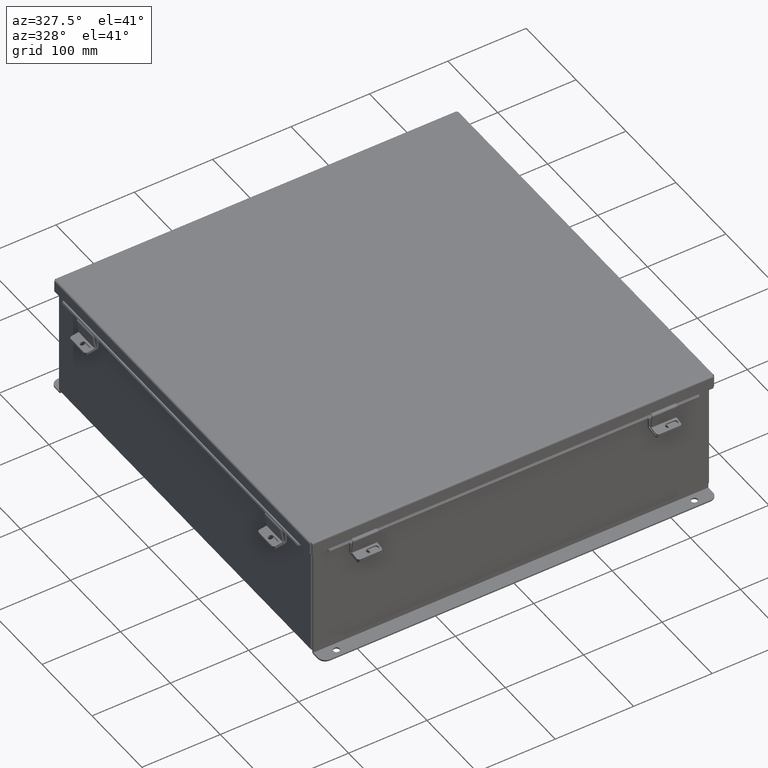
[diagram: clean part render]
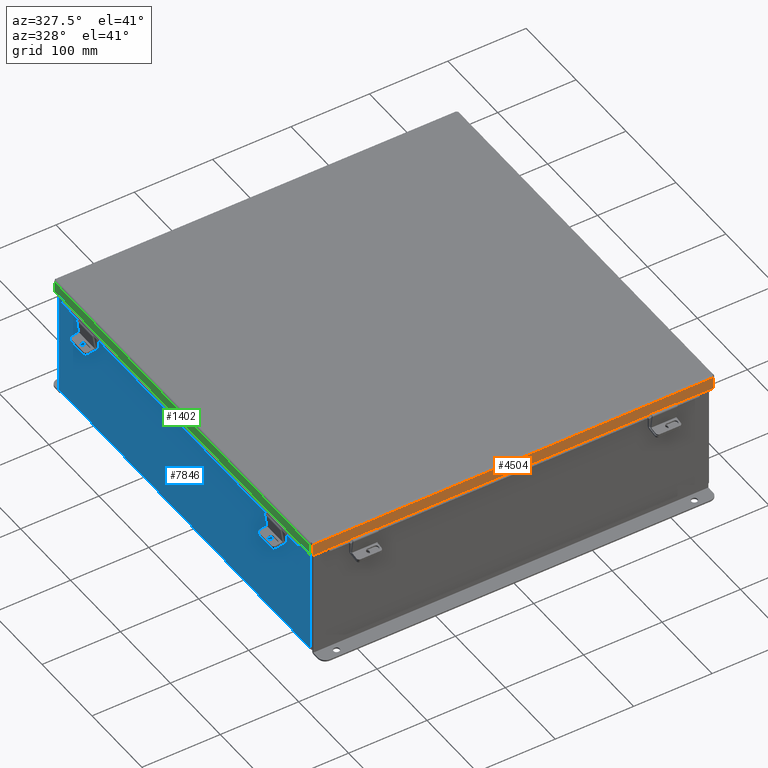
[diagram: same view with three faces highlighted in distinct colors, each labeled with its STEP entity id]
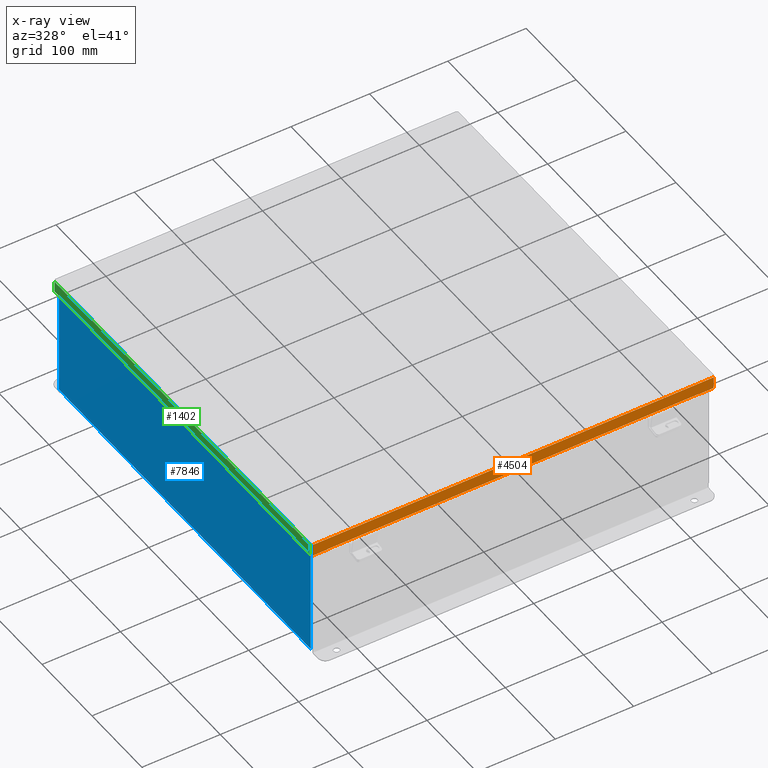
[diagram: x-ray of the same camera — body ghosted, the three highlighted faces saturated]
A machine part, auxiliary view with three faces highlighted in distinct colors.
The next image is the same camera in x-ray (body ghosted, the three faces saturated) — at least one of them is partly hidden behind the body in this view.
Their STEP definitions:

[orange] entity #4504 — the highlighted planar face has unit normal (0, 1, 0).
#35 = CARTESIAN_POINT ( 'NONE',  ( -1.092739197465705100E-015, -10.15624999999999600, -2.608136560115820500E-016 ) ) ;
#69 = VECTOR ( 'NONE', #6553, 39.37007874015748100 ) ;
#226 = CARTESIAN_POINT ( 'NONE',  ( -9.324478932188130300, -10.15624999999999600, 0.5967115427318792100 ) ) ;
#257 = CARTESIAN_POINT ( 'NONE',  ( -9.324478932188130300, -10.15624999999999600, 0.6122999999999997300 ) ) ;
#347 = EDGE_CURVE ( 'NONE', #3355, #8880, #5350, .T. ) ;
#515 = CARTESIAN_POINT ( 'NONE',  ( 9.324478932188133800, -10.15624999999999600, 0.6122999999999997300 ) ) ;
#595 = CARTESIAN_POINT ( 'NONE',  ( -1.090680476817679800E-015, -10.15624999999999600, 0.6122999999999997300 ) ) ;
#814 = DIRECTION ( 'NONE',  ( 1.075927825197002200E-016, 1.000000000000000000, -0.0000000000000000000 ) ) ;
#894 = EDGE_CURVE ( 'NONE', #2578, #6916, #5200, .T. ) ;
#1002 = VECTOR ( 'NONE', #9154, 39.37007874015748100 ) ;
#1134 = VECTOR ( 'NONE', #8388, 39.37007874015748100 ) ;
#1226 = VERTEX_POINT ( 'NONE', #9748 ) ;
#1320 = FACE_OUTER_BOUND ( 'NONE', #4576, .T. ) ;
#1419 = CARTESIAN_POINT ( 'NONE',  ( -10.07447893218813200, -10.15624999999999600, 3.125669222287427700E-032 ) ) ;
#1513 = ORIENTED_EDGE ( 'NONE', *, *, #3130, .T. ) ;
#1779 = ORIENTED_EDGE ( 'NONE', *, *, #347, .F. ) ;
#1998 = CARTESIAN_POINT ( 'NONE',  ( 10.07447893218813400, -10.15624999999999600, -2.608136560115820500E-016 ) ) ;
#2578 = VERTEX_POINT ( 'NONE', #9290 ) ;
#2753 = EDGE_CURVE ( 'NONE', #8880, #3658, #5870, .T. ) ;
#2994 = EDGE_CURVE ( 'NONE', #1226, #3658, #6701, .T. ) ;
#3130 = EDGE_CURVE ( 'NONE', #6317, #6916, #3266, .T. ) ;
#3266 = LINE ( 'NONE', #5306, #1002 ) ;
#3283 = CARTESIAN_POINT ( 'NONE',  ( 10.07447893218813400, -10.15624999999999600, 0.01300000000000228900 ) ) ;
#3355 = VERTEX_POINT ( 'NONE', #226 ) ;
#3495 = ORIENTED_EDGE ( 'NONE', *, *, #5547, .F. ) ;
#3650 = DIRECTION ( 'NONE',  ( -1.000000000000000000, 1.075927825197002400E-016, 3.362274453740632500E-018 ) ) ;
#3658 = VERTEX_POINT ( 'NONE', #515 ) ;
#4504 = ADVANCED_FACE ( 'NONE', ( #1320 ), #5355, .F. ) ;
#4576 = EDGE_LOOP ( 'NONE', ( #3495, #1513, #7041, #4590, #6320, #5085, #6907, #1779 ) ) ;
#4590 = ORIENTED_EDGE ( 'NONE', *, *, #7837, .F. ) ;
#4901 = EDGE_CURVE ( 'NONE', #5312, #1226, #5884, .T. ) ;
#5085 = ORIENTED_EDGE ( 'NONE', *, *, #2994, .T. ) ;
#5200 = LINE ( 'NONE', #1419, #6986 ) ;
#5306 = CARTESIAN_POINT ( 'NONE',  ( -1.090680476817679800E-015, -10.15624999999999600, 0.6122999999999997300 ) ) ;
#5312 = VERTEX_POINT ( 'NONE', #3283 ) ;
#5350 = LINE ( 'NONE', #8799, #6890 ) ;
#5355 = PLANE ( 'NONE',  #9683 ) ;
#5547 = EDGE_CURVE ( 'NONE', #6317, #3355, #7409, .T. ) ;
#5747 = DIRECTION ( 'NONE',  ( 1.000000000000000000, 0.0000000000000000000, 0.0000000000000000000 ) ) ;
#5870 = LINE ( 'NONE', #6442, #7666 ) ;
#5884 = LINE ( 'NONE', #1998, #69 ) ;
#6030 = DIRECTION ( 'NONE',  ( 7.009925220120809400E-014, 1.401985044024161900E-013, -1.000000000000000000 ) ) ;
#6121 = DIRECTION ( 'NONE',  ( -1.000000000000000000, 1.075927825197002200E-016, 0.0000000000000000000 ) ) ;
#6227 = VECTOR ( 'NONE', #3650, 39.37007874015748100 ) ;
#6317 = VERTEX_POINT ( 'NONE', #257 ) ;
#6320 = ORIENTED_EDGE ( 'NONE', *, *, #4901, .T. ) ;
#6442 = CARTESIAN_POINT ( 'NONE',  ( 9.324478932188133800, -10.15624999999999500, 0.5967115427318792100 ) ) ;
#6553 = DIRECTION ( 'NONE',  ( 0.0000000000000000000, 0.0000000000000000000, 1.000000000000000000 ) ) ;
#6701 = LINE ( 'NONE', #595, #6227 ) ;
#6890 = VECTOR ( 'NONE', #5747, 39.37007874015748100 ) ;
#6907 = ORIENTED_EDGE ( 'NONE', *, *, #2753, .F. ) ;
#6916 = VERTEX_POINT ( 'NONE', #7081 ) ;
#6986 = VECTOR ( 'NONE', #8258, 39.37007874015748100 ) ;
#7041 = ORIENTED_EDGE ( 'NONE', *, *, #894, .F. ) ;
#7081 = CARTESIAN_POINT ( 'NONE',  ( -10.07447893218813200, -10.15624999999999600, 0.6122999999999997300 ) ) ;
#7203 = DIRECTION ( 'NONE',  ( 0.0000000000000000000, -1.401985044024106600E-013, 1.000000000000000000 ) ) ;
#7409 = LINE ( 'NONE', #7562, #9225 ) ;
#7562 = CARTESIAN_POINT ( 'NONE',  ( -9.324478932188130300, -10.15624999999999600, 0.6122999999999992900 ) ) ;
#7600 = CARTESIAN_POINT ( 'NONE',  ( -10.15624999999999600, -10.15624999999999500, 0.01300000000000011200 ) ) ;
#7666 = VECTOR ( 'NONE', #7203, 39.37007874015748100 ) ;
#7837 = EDGE_CURVE ( 'NONE', #5312, #2578, #9470, .T. ) ;
#8053 = CARTESIAN_POINT ( 'NONE',  ( 9.324478932188133800, -10.15624999999999600, 0.5967115427318792100 ) ) ;
#8258 = DIRECTION ( 'NONE',  ( -0.0000000000000000000, -0.0000000000000000000, 1.000000000000000000 ) ) ;
#8388 = DIRECTION ( 'NONE',  ( -1.000000000000000000, 1.075927825197002400E-016, -1.075927825197002500E-016 ) ) ;
#8799 = CARTESIAN_POINT ( 'NONE',  ( -9.324478932188130300, -10.15624999999999500, 0.5967115427318792100 ) ) ;
#8880 = VERTEX_POINT ( 'NONE', #8053 ) ;
#9154 = DIRECTION ( 'NONE',  ( -1.000000000000000000, 1.075927825197002400E-016, 3.362274453740632500E-018 ) ) ;
#9225 = VECTOR ( 'NONE', #6030, 39.37007874015748100 ) ;
#9290 = CARTESIAN_POINT ( 'NONE',  ( -10.07447893218813400, -10.15624999999999600, 0.01300000000000037200 ) ) ;
#9470 = LINE ( 'NONE', #7600, #1134 ) ;
#9683 = AXIS2_PLACEMENT_3D ( 'NONE', #35, #814, #6121 ) ;
#9748 = CARTESIAN_POINT ( 'NONE',  ( 10.07447893218813400, -10.15624999999999600, 0.6122999999999997300 ) ) ;

[blue] entity #7846 — the highlighted planar face has unit normal (1, 0, 0).
#21 = DIRECTION ( 'NONE',  ( 3.361929640444175900E-015, 0.0000000000000000000, -1.000000000000000000 ) ) ;
#99 = AXIS2_PLACEMENT_3D ( 'NONE', #7569, #4578, #21 ) ;
#120 = EDGE_CURVE ( 'NONE', #6277, #1576, #2497, .T. ) ;
#1105 = DIRECTION ( 'NONE',  ( -3.361929640444176300E-015, 3.735477378271307500E-016, 1.000000000000000000 ) ) ;
#1576 = VERTEX_POINT ( 'NONE', #9387 ) ;
#1602 = VERTEX_POINT ( 'NONE', #8692 ) ;
#1802 = EDGE_CURVE ( 'NONE', #2368, #1576, #4360, .T. ) ;
#2148 = DIRECTION ( 'NONE',  ( 3.361929640444176300E-015, 0.0000000000000000000, -1.000000000000000000 ) ) ;
#2227 = CARTESIAN_POINT ( 'NONE',  ( -9.999999999999998200, 9.925300000000001800, 0.01299999999999986400 ) ) ;
#2368 = VERTEX_POINT ( 'NONE', #9319 ) ;
#2497 = LINE ( 'NONE', #2227, #4521 ) ;
#3161 = FACE_OUTER_BOUND ( 'NONE', #3937, .T. ) ;
#3916 = CARTESIAN_POINT ( 'NONE',  ( -10.00000000000001800, -9.925299999999992900, 5.837599999999999200 ) ) ;
#3937 = EDGE_LOOP ( 'NONE', ( #6777, #6571, #4683, #8782 ) ) ;
#4141 = CARTESIAN_POINT ( 'NONE',  ( -9.999999999999998200, -9.925299999999998200, -3.017253669819771800E-014 ) ) ;
#4239 = VECTOR ( 'NONE', #6959, 39.37007874015748100 ) ;
#4360 = LINE ( 'NONE', #8249, #6609 ) ;
#4521 = VECTOR ( 'NONE', #7536, 39.37007874015748100 ) ;
#4570 = EDGE_CURVE ( 'NONE', #1602, #2368, #6251, .T. ) ;
#4578 = DIRECTION ( 'NONE',  ( 1.000000000000000000, 0.0000000000000000000, 3.361929640444175900E-015 ) ) ;
#4683 = ORIENTED_EDGE ( 'NONE', *, *, #120, .F. ) ;
#4837 = VECTOR ( 'NONE', #1105, 39.37007874015748100 ) ;
#6251 = LINE ( 'NONE', #3916, #4239 ) ;
#6277 = VERTEX_POINT ( 'NONE', #8465 ) ;
#6571 = ORIENTED_EDGE ( 'NONE', *, *, #1802, .T. ) ;
#6609 = VECTOR ( 'NONE', #2148, 39.37007874015748100 ) ;
#6777 = ORIENTED_EDGE ( 'NONE', *, *, #4570, .T. ) ;
#6854 = LINE ( 'NONE', #4141, #4837 ) ;
#6959 = DIRECTION ( 'NONE',  ( 0.0000000000000000000, 1.000000000000000000, 0.0000000000000000000 ) ) ;
#6972 = EDGE_CURVE ( 'NONE', #6277, #1602, #6854, .T. ) ;
#7536 = DIRECTION ( 'NONE',  ( -0.0000000000000000000, 1.000000000000000000, -0.0000000000000000000 ) ) ;
#7569 = CARTESIAN_POINT ( 'NONE',  ( -9.999999999999998200, 0.0000000000000000000, -3.388011006045333500E-014 ) ) ;
#7846 = ADVANCED_FACE ( 'NONE', ( #3161 ), #9155, .F. ) ;
#8249 = CARTESIAN_POINT ( 'NONE',  ( -9.999999999999998200, 9.925300000000001800, -3.388011006045333500E-014 ) ) ;
#8465 = CARTESIAN_POINT ( 'NONE',  ( -9.999999999999998200, -9.925299999999992900, 0.01299999999999986400 ) ) ;
#8692 = CARTESIAN_POINT ( 'NONE',  ( -10.00000000000001800, -9.925299999999991100, 5.837599999999999200 ) ) ;
#8782 = ORIENTED_EDGE ( 'NONE', *, *, #6972, .T. ) ;
#9155 = PLANE ( 'NONE',  #99 ) ;
#9319 = CARTESIAN_POINT ( 'NONE',  ( -10.00000000000001800, 9.925300000000001800, 5.837599999999999200 ) ) ;
#9387 = CARTESIAN_POINT ( 'NONE',  ( -9.999999999999998200, 9.925300000000001800, 0.01299999999999985500 ) ) ;

[green] entity #1402 — the highlighted planar face has unit normal (1, -0, 0).
#87 = LINE ( 'NONE', #7812, #2098 ) ;
#155 = LINE ( 'NONE', #6549, #7519 ) ;
#159 = CARTESIAN_POINT ( 'NONE',  ( 10.15625000000000400, 9.324478932188135600, 0.5503000000000000100 ) ) ;
#171 = VERTEX_POINT ( 'NONE', #3014 ) ;
#283 = CARTESIAN_POINT ( 'NONE',  ( 10.15625000000000400, -9.324478932188133800, 0.5503000000000000100 ) ) ;
#391 = CARTESIAN_POINT ( 'NONE',  ( 10.15625000000000200, -10.07447893218813200, -2.966658842474588900E-016 ) ) ;
#548 = VECTOR ( 'NONE', #6452, 39.37007874015748100 ) ;
#861 = VECTOR ( 'NONE', #6156, 39.37007874015748100 ) ;
#1097 = LINE ( 'NONE', #3863, #861 ) ;
#1402 = ADVANCED_FACE ( 'NONE', ( #3660 ), #5349, .F. ) ;
#1554 = DIRECTION ( 'NONE',  ( 3.971430846686188400E-015, 0.0000000000000000000, 1.000000000000000000 ) ) ;
#1687 = EDGE_CURVE ( 'NONE', #9734, #8190, #7321, .T. ) ;
#1767 = CARTESIAN_POINT ( 'NONE',  ( 10.15625000000000400, 0.0000000000000000000, 0.5503000000000000100 ) ) ;
#1814 = ORIENTED_EDGE ( 'NONE', *, *, #5873, .T. ) ;
#1829 = DIRECTION ( 'NONE',  ( -1.401985044024125000E-013, -7.009925220120625200E-014, -1.000000000000000000 ) ) ;
#1861 = EDGE_CURVE ( 'NONE', #7316, #2002, #87, .T. ) ;
#2002 = VERTEX_POINT ( 'NONE', #3354 ) ;
#2098 = VECTOR ( 'NONE', #4022, 39.37007874015748100 ) ;
#2103 = VERTEX_POINT ( 'NONE', #6463 ) ;
#2173 = ORIENTED_EDGE ( 'NONE', *, *, #4795, .F. ) ;
#2752 = DIRECTION ( 'NONE',  ( 3.971430846686188400E-015, 0.0000000000000000000, 1.000000000000000000 ) ) ;
#2766 = DIRECTION ( 'NONE',  ( 0.0000000000000000000, 7.009925220119856500E-014, 1.000000000000000000 ) ) ;
#2801 = LINE ( 'NONE', #391, #548 ) ;
#2929 = ORIENTED_EDGE ( 'NONE', *, *, #6933, .F. ) ;
#3014 = CARTESIAN_POINT ( 'NONE',  ( 10.15625000000000400, -10.07447893218813200, 0.5503000000000000100 ) ) ;
#3236 = ORIENTED_EDGE ( 'NONE', *, *, #1861, .F. ) ;
#3298 = LINE ( 'NONE', #6390, #9142 ) ;
#3313 = DIRECTION ( 'NONE',  ( 0.0000000000000000000, -1.000000000000000000, 0.0000000000000000000 ) ) ;
#3354 = CARTESIAN_POINT ( 'NONE',  ( 10.15625000000000200, -10.07447893218813400, 0.01299999999999981200 ) ) ;
#3582 = CARTESIAN_POINT ( 'NONE',  ( 10.15625000000000200, 10.07447893218813400, 0.01299999999999981200 ) ) ;
#3660 = FACE_OUTER_BOUND ( 'NONE', #9670, .T. ) ;
#3863 = CARTESIAN_POINT ( 'NONE',  ( 10.15625000000000400, 0.0000000000000000000, 0.5503000000000000100 ) ) ;
#4022 = DIRECTION ( 'NONE',  ( -0.0000000000000000000, -1.000000000000000000, -0.0000000000000000000 ) ) ;
#4117 = EDGE_CURVE ( 'NONE', #8190, #8006, #155, .T. ) ;
#4219 = DIRECTION ( 'NONE',  ( 0.0000000000000000000, 1.000000000000000000, 0.0000000000000000000 ) ) ;
#4528 = EDGE_CURVE ( 'NONE', #5383, #171, #1097, .T. ) ;
#4795 = EDGE_CURVE ( 'NONE', #2002, #171, #2801, .T. ) ;
#4836 = LINE ( 'NONE', #7285, #8434 ) ;
#5349 = PLANE ( 'NONE',  #7114 ) ;
#5358 = ORIENTED_EDGE ( 'NONE', *, *, #1687, .F. ) ;
#5383 = VERTEX_POINT ( 'NONE', #283 ) ;
#5873 = EDGE_CURVE ( 'NONE', #2103, #8006, #7284, .T. ) ;
#6077 = CARTESIAN_POINT ( 'NONE',  ( 10.15625000000000200, 0.0000000000000000000, -4.059565819266818600E-014 ) ) ;
#6111 = DIRECTION ( 'NONE',  ( -1.000000000000000000, 0.0000000000000000000, 3.971430846686188400E-015 ) ) ;
#6156 = DIRECTION ( 'NONE',  ( 0.0000000000000000000, -1.000000000000000000, 0.0000000000000000000 ) ) ;
#6199 = CARTESIAN_POINT ( 'NONE',  ( 10.15625000000000400, -9.324478932188133800, 0.5347115427318770400 ) ) ;
#6390 = CARTESIAN_POINT ( 'NONE',  ( 10.15625000000000500, -9.324478932188133800, 0.5502999999999975700 ) ) ;
#6452 = DIRECTION ( 'NONE',  ( 3.971430846686188400E-015, -0.0000000000000000000, 1.000000000000000000 ) ) ;
#6463 = CARTESIAN_POINT ( 'NONE',  ( 10.15625000000000400, 10.07447893218813400, 0.5503000000000000100 ) ) ;
#6549 = CARTESIAN_POINT ( 'NONE',  ( 10.15625000000000400, 9.324478932188132100, 0.5347115427318770400 ) ) ;
#6933 = EDGE_CURVE ( 'NONE', #5383, #9734, #3298, .T. ) ;
#7114 = AXIS2_PLACEMENT_3D ( 'NONE', #6077, #6111, #1554 ) ;
#7284 = LINE ( 'NONE', #1767, #9106 ) ;
#7285 = CARTESIAN_POINT ( 'NONE',  ( 10.15625000000000200, 10.07447893218813600, -4.059565819266818600E-014 ) ) ;
#7316 = VERTEX_POINT ( 'NONE', #3582 ) ;
#7321 = LINE ( 'NONE', #8788, #9602 ) ;
#7487 = ORIENTED_EDGE ( 'NONE', *, *, #4528, .T. ) ;
#7519 = VECTOR ( 'NONE', #2766, 39.37007874015748100 ) ;
#7812 = CARTESIAN_POINT ( 'NONE',  ( 10.15625000000000200, -10.15624999999999800, 0.01299999999999981200 ) ) ;
#8006 = VERTEX_POINT ( 'NONE', #159 ) ;
#8190 = VERTEX_POINT ( 'NONE', #8730 ) ;
#8434 = VECTOR ( 'NONE', #2752, 39.37007874015748100 ) ;
#8730 = CARTESIAN_POINT ( 'NONE',  ( 10.15625000000000400, 9.324478932188132100, 0.5347115427318770400 ) ) ;
#8788 = CARTESIAN_POINT ( 'NONE',  ( 10.15625000000000400, -9.324478932188133800, 0.5347115427318770400 ) ) ;
#9106 = VECTOR ( 'NONE', #3313, 39.37007874015748100 ) ;
#9142 = VECTOR ( 'NONE', #1829, 39.37007874015748100 ) ;
#9329 = EDGE_CURVE ( 'NONE', #7316, #2103, #4836, .T. ) ;
#9602 = VECTOR ( 'NONE', #4219, 39.37007874015748100 ) ;
#9670 = EDGE_LOOP ( 'NONE', ( #2929, #7487, #2173, #3236, #9763, #1814, #9714, #5358 ) ) ;
#9714 = ORIENTED_EDGE ( 'NONE', *, *, #4117, .F. ) ;
#9734 = VERTEX_POINT ( 'NONE', #6199 ) ;
#9763 = ORIENTED_EDGE ( 'NONE', *, *, #9329, .T. ) ;